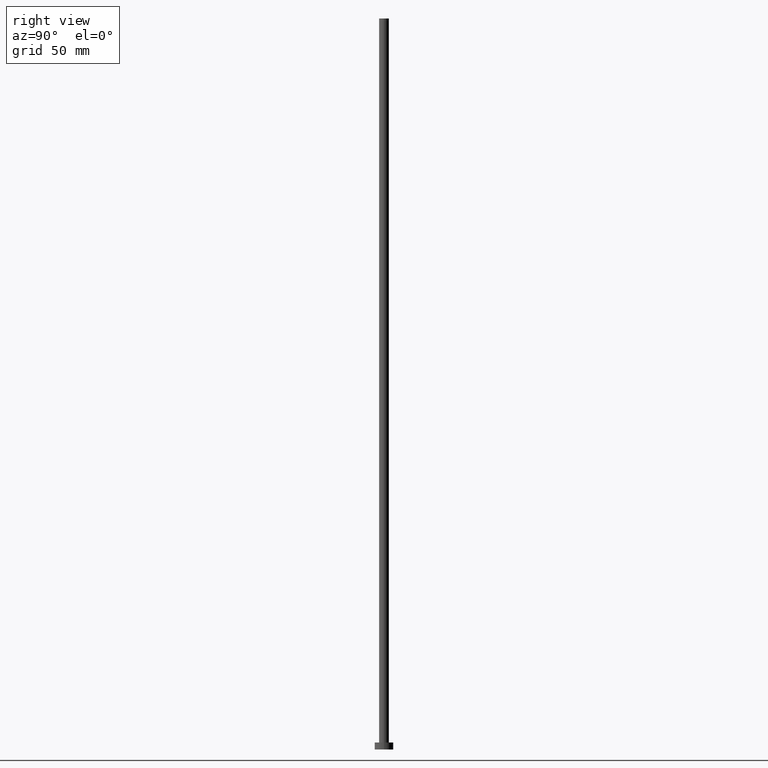
[diagram: clean part render]
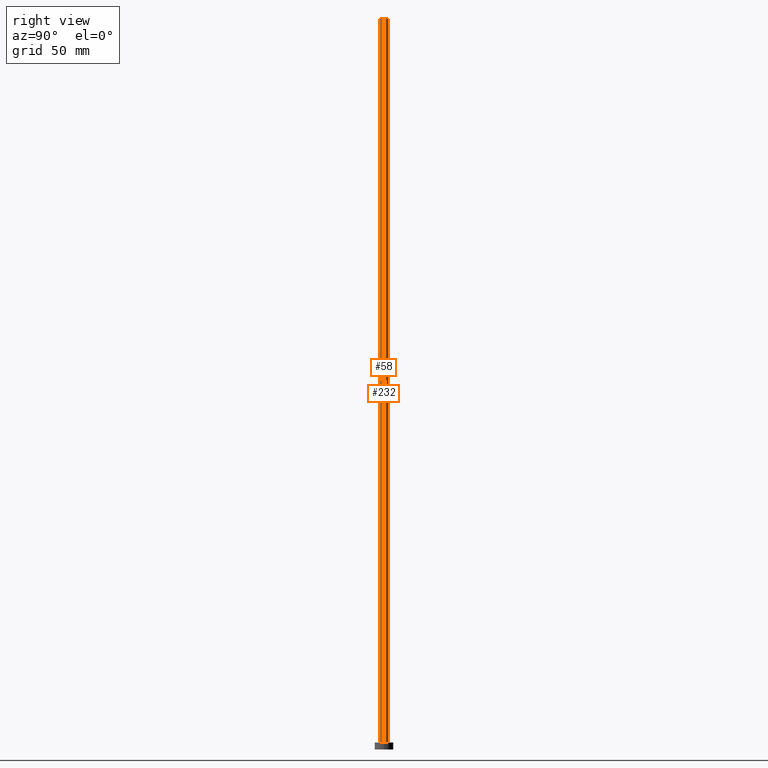
[diagram: same view with one multi-face feature highlighted, each face labeled with its STEP entity id]
A machine part, right view. The highlighted faces form ONE feature: a constant-radius fillet chain: 2 tangent blend faces with common blend radius 2.1 mm. The faces share edges in the B-rep.
Their STEP definitions:
[1] entity #232 (Cylinder):
#10 = AXIS2_PLACEMENT_3D ( 'NONE', #218, #33, #116 ) ;
#14 = EDGE_CURVE ( 'NONE', #233, #93, #42, .T. ) ;
#20 = DIRECTION ( 'NONE',  ( 1.000000000000000000, 0.000000000000000000, 0.000000000000000000 ) ) ;
#22 = ORIENTED_EDGE ( 'NONE', *, *, #81, .T. ) ;
#24 = VECTOR ( 'NONE', #209, 1000.000000000000000 ) ;
#30 = AXIS2_PLACEMENT_3D ( 'NONE', #203, #99, #20 ) ;
#33 = DIRECTION ( 'NONE',  ( -0.000000000000000000, -0.000000000000000000, -1.000000000000000000 ) ) ;
#42 = LINE ( 'NONE', #66, #45 ) ;
#45 = VECTOR ( 'NONE', #69, 1000.000000000000000 ) ;
#49 = CARTESIAN_POINT ( 'NONE',  ( -2.100000000000000089, 0.000000000000000000, 3.000000000000000000 ) ) ;
#62 = ORIENTED_EDGE ( 'NONE', *, *, #246, .T. ) ;
#66 = CARTESIAN_POINT ( 'NONE',  ( -2.100000000000000089, 0.000000000000000000, 315.0000000000000000 ) ) ;
#69 = DIRECTION ( 'NONE',  ( -0.000000000000000000, -0.000000000000000000, -1.000000000000000000 ) ) ;
#81 = EDGE_CURVE ( 'NONE', #121, #100, #84, .T. ) ;
#84 = LINE ( 'NONE', #127, #24 ) ;
#93 = VERTEX_POINT ( 'NONE', #49 ) ;
#99 = DIRECTION ( 'NONE',  ( 0.000000000000000000, 0.000000000000000000, 1.000000000000000000 ) ) ;
#100 = VERTEX_POINT ( 'NONE', #211 ) ;
#109 = CARTESIAN_POINT ( 'NONE',  ( 2.100000000000000089, 2.571758278209441957E-16, 315.0000000000000000 ) ) ;
#112 = CIRCLE ( 'NONE', #30, 2.100000000000000089 ) ;
#116 = DIRECTION ( 'NONE',  ( -1.000000000000000000, 0.000000000000000000, 0.000000000000000000 ) ) ;
#121 = VERTEX_POINT ( 'NONE', #109 ) ;
#127 = CARTESIAN_POINT ( 'NONE',  ( 2.100000000000000089, 2.571758278209441957E-16, 315.0000000000000000 ) ) ;
#132 = FACE_OUTER_BOUND ( 'NONE', #174, .T. ) ;
#141 = DIRECTION ( 'NONE',  ( 1.000000000000000000, 0.000000000000000000, 0.000000000000000000 ) ) ;
#153 = ORIENTED_EDGE ( 'NONE', *, *, #14, .F. ) ;
#156 = EDGE_CURVE ( 'NONE', #121, #233, #112, .T. ) ;
#162 = ORIENTED_EDGE ( 'NONE', *, *, #156, .F. ) ;
#170 = CIRCLE ( 'NONE', #195, 2.100000000000000089 ) ;
#174 = EDGE_LOOP ( 'NONE', ( #162, #22, #62, #153 ) ) ;
#195 = AXIS2_PLACEMENT_3D ( 'NONE', #219, #254, #141 ) ;
#197 = CARTESIAN_POINT ( 'NONE',  ( -2.100000000000000089, 0.000000000000000000, 315.0000000000000000 ) ) ;
#203 = CARTESIAN_POINT ( 'NONE',  ( 0.000000000000000000, 0.000000000000000000, 315.0000000000000000 ) ) ;
#209 = DIRECTION ( 'NONE',  ( -0.000000000000000000, -0.000000000000000000, -1.000000000000000000 ) ) ;
#211 = CARTESIAN_POINT ( 'NONE',  ( 2.100000000000000089, 2.571758278209441957E-16, 3.000000000000000000 ) ) ;
#213 = CYLINDRICAL_SURFACE ( 'NONE', #10, 2.100000000000000089 ) ;
#218 = CARTESIAN_POINT ( 'NONE',  ( 0.000000000000000000, 0.000000000000000000, 315.0000000000000000 ) ) ;
#219 = CARTESIAN_POINT ( 'NONE',  ( 0.000000000000000000, 0.000000000000000000, 3.000000000000000000 ) ) ;
#232 = ADVANCED_FACE ( 'NONE', ( #132 ), #213, .T. ) ;
#233 = VERTEX_POINT ( 'NONE', #197 ) ;
#246 = EDGE_CURVE ( 'NONE', #100, #93, #170, .T. ) ;
#254 = DIRECTION ( 'NONE',  ( 0.000000000000000000, 0.000000000000000000, 1.000000000000000000 ) ) ;
[2] entity #58 (Cylinder):
#4 = DIRECTION ( 'NONE',  ( -1.000000000000000000, 0.000000000000000000, 0.000000000000000000 ) ) ;
#14 = EDGE_CURVE ( 'NONE', #233, #93, #42, .T. ) ;
#24 = VECTOR ( 'NONE', #209, 1000.000000000000000 ) ;
#25 = DIRECTION ( 'NONE',  ( 1.000000000000000000, 0.000000000000000000, 0.000000000000000000 ) ) ;
#39 = ORIENTED_EDGE ( 'NONE', *, *, #114, .F. ) ;
#42 = LINE ( 'NONE', #66, #45 ) ;
#45 = VECTOR ( 'NONE', #69, 1000.000000000000000 ) ;
#46 = CARTESIAN_POINT ( 'NONE',  ( 0.000000000000000000, 0.000000000000000000, 3.000000000000000000 ) ) ;
#49 = CARTESIAN_POINT ( 'NONE',  ( -2.100000000000000089, 0.000000000000000000, 3.000000000000000000 ) ) ;
#51 = DIRECTION ( 'NONE',  ( 0.000000000000000000, 0.000000000000000000, 1.000000000000000000 ) ) ;
#58 = ADVANCED_FACE ( 'NONE', ( #182 ), #244, .T. ) ;
#66 = CARTESIAN_POINT ( 'NONE',  ( -2.100000000000000089, 0.000000000000000000, 315.0000000000000000 ) ) ;
#69 = DIRECTION ( 'NONE',  ( -0.000000000000000000, -0.000000000000000000, -1.000000000000000000 ) ) ;
#81 = EDGE_CURVE ( 'NONE', #121, #100, #84, .T. ) ;
#84 = LINE ( 'NONE', #127, #24 ) ;
#89 = AXIS2_PLACEMENT_3D ( 'NONE', #191, #192, #90 ) ;
#90 = DIRECTION ( 'NONE',  ( 1.000000000000000000, 0.000000000000000000, 0.000000000000000000 ) ) ;
#93 = VERTEX_POINT ( 'NONE', #49 ) ;
#100 = VERTEX_POINT ( 'NONE', #211 ) ;
#103 = CIRCLE ( 'NONE', #135, 2.100000000000000089 ) ;
#105 = DIRECTION ( 'NONE',  ( -0.000000000000000000, -0.000000000000000000, -1.000000000000000000 ) ) ;
#109 = CARTESIAN_POINT ( 'NONE',  ( 2.100000000000000089, 2.571758278209441957E-16, 315.0000000000000000 ) ) ;
#114 = EDGE_CURVE ( 'NONE', #233, #121, #214, .T. ) ;
#118 = EDGE_CURVE ( 'NONE', #93, #100, #103, .T. ) ;
#121 = VERTEX_POINT ( 'NONE', #109 ) ;
#126 = CARTESIAN_POINT ( 'NONE',  ( 0.000000000000000000, 0.000000000000000000, 315.0000000000000000 ) ) ;
#127 = CARTESIAN_POINT ( 'NONE',  ( 2.100000000000000089, 2.571758278209441957E-16, 315.0000000000000000 ) ) ;
#135 = AXIS2_PLACEMENT_3D ( 'NONE', #46, #51, #25 ) ;
#144 = EDGE_LOOP ( 'NONE', ( #247, #39, #228, #161 ) ) ;
#161 = ORIENTED_EDGE ( 'NONE', *, *, #118, .T. ) ;
#173 = AXIS2_PLACEMENT_3D ( 'NONE', #126, #105, #4 ) ;
#182 = FACE_OUTER_BOUND ( 'NONE', #144, .T. ) ;
#191 = CARTESIAN_POINT ( 'NONE',  ( 0.000000000000000000, 0.000000000000000000, 315.0000000000000000 ) ) ;
#192 = DIRECTION ( 'NONE',  ( 0.000000000000000000, 0.000000000000000000, 1.000000000000000000 ) ) ;
#197 = CARTESIAN_POINT ( 'NONE',  ( -2.100000000000000089, 0.000000000000000000, 315.0000000000000000 ) ) ;
#209 = DIRECTION ( 'NONE',  ( -0.000000000000000000, -0.000000000000000000, -1.000000000000000000 ) ) ;
#211 = CARTESIAN_POINT ( 'NONE',  ( 2.100000000000000089, 2.571758278209441957E-16, 3.000000000000000000 ) ) ;
#214 = CIRCLE ( 'NONE', #89, 2.100000000000000089 ) ;
#228 = ORIENTED_EDGE ( 'NONE', *, *, #14, .T. ) ;
#233 = VERTEX_POINT ( 'NONE', #197 ) ;
#244 = CYLINDRICAL_SURFACE ( 'NONE', #173, 2.100000000000000089 ) ;
#247 = ORIENTED_EDGE ( 'NONE', *, *, #81, .F. ) ;